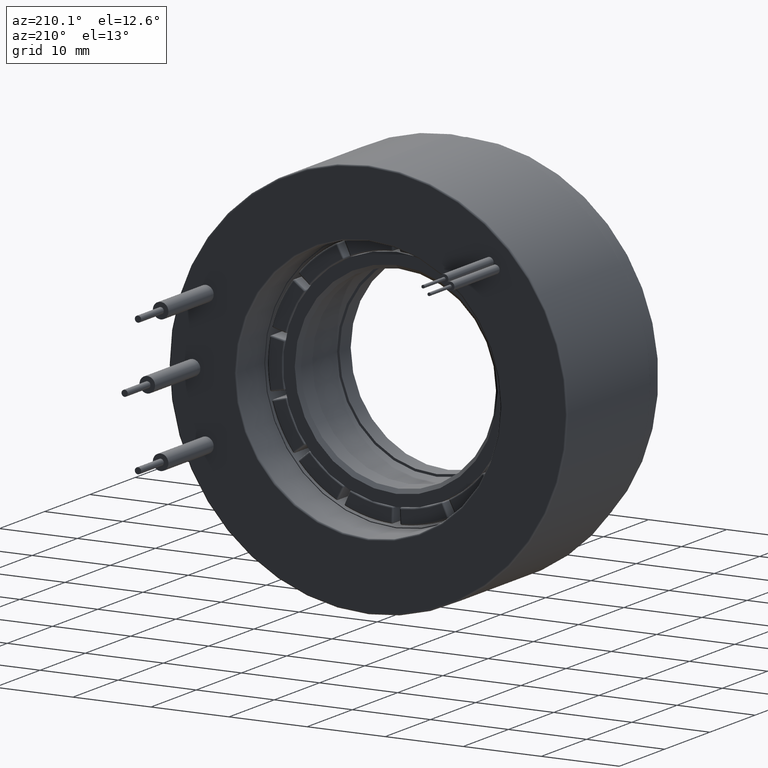
[diagram: clean part render]
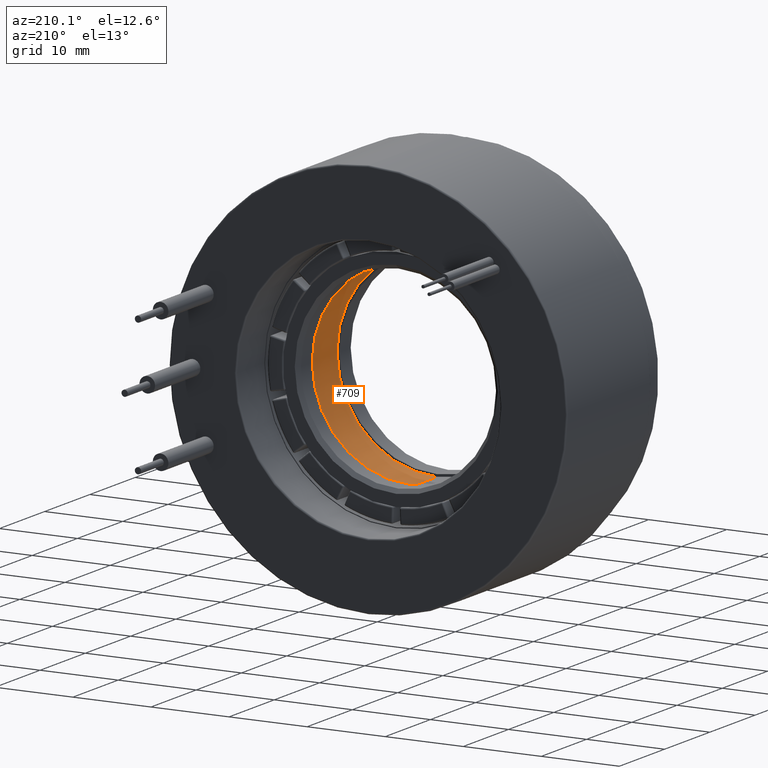
[diagram: same view with one face highlighted and labeled with its STEP entity id]
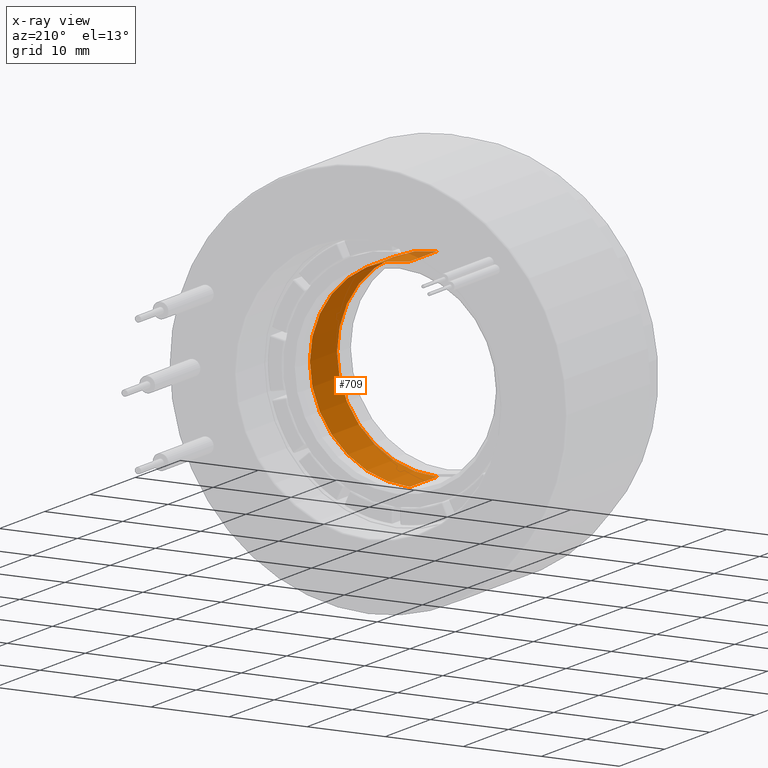
[diagram: x-ray of the same camera — body ghosted, the highlighted face saturated]
A machine part, auxiliary view. The second image highlights one B-rep face of the part: STEP entity #709.
The next image is the same camera in x-ray: the body ghosted, the highlighted face saturated — about 2% of this face is hidden behind the body in this view.
In plain terms, the highlighted cylindrical surface (partial cylindrical patch) has radius 12.8 mm, axis along (0, -1, 0).
Its self-contained STEP definition (entity closure, byte-faithful):
#48 = CARTESIAN_POINT ( 'NONE',  ( 0.0000000000000000000, 2.999999999999999600, 0.0000000000000000000 ) ) ;
#172 = VERTEX_POINT ( 'NONE', #3058 ) ;
#396 = VERTEX_POINT ( 'NONE', #3096 ) ;
#518 = EDGE_LOOP ( 'NONE', ( #1959, #3149, #3003, #777 ) ) ;
#553 = AXIS2_PLACEMENT_3D ( 'NONE', #996, #1854, #3117 ) ;
#575 = DIRECTION ( 'NONE',  ( 0.0000000000000000000, 0.0000000000000000000, -1.000000000000000000 ) ) ;
#709 = ADVANCED_FACE ( 'NONE', ( #1803 ), #915, .F. ) ;
#720 = CIRCLE ( 'NONE', #2997, 12.80000000000000200 ) ;
#741 = VERTEX_POINT ( 'NONE', #1917 ) ;
#777 = ORIENTED_EDGE ( 'NONE', *, *, #2300, .F. ) ;
#836 = DIRECTION ( 'NONE',  ( 0.0000000000000000000, 0.0000000000000000000, -1.000000000000000000 ) ) ;
#915 = CYLINDRICAL_SURFACE ( 'NONE', #553, 12.80000000000000200 ) ;
#996 = CARTESIAN_POINT ( 'NONE',  ( 0.0000000000000000000, 0.0000000000000000000, 0.0000000000000000000 ) ) ;
#1071 = DIRECTION ( 'NONE',  ( -0.0000000000000000000, -1.000000000000000000, -0.0000000000000000000 ) ) ;
#1459 = EDGE_CURVE ( 'NONE', #741, #3190, #1777, .T. ) ;
#1546 = AXIS2_PLACEMENT_3D ( 'NONE', #2593, #1071, #836 ) ;
#1777 = CIRCLE ( 'NONE', #1546, 12.80000000000000100 ) ;
#1803 = FACE_OUTER_BOUND ( 'NONE', #518, .T. ) ;
#1854 = DIRECTION ( 'NONE',  ( -0.0000000000000000000, -1.000000000000000000, -0.0000000000000000000 ) ) ;
#1917 = CARTESIAN_POINT ( 'NONE',  ( 1.567547902908612200E-015, 9.000000000000001800, 12.80000000000000100 ) ) ;
#1923 = EDGE_CURVE ( 'NONE', #396, #172, #720, .T. ) ;
#1959 = ORIENTED_EDGE ( 'NONE', *, *, #1459, .F. ) ;
#2072 = DIRECTION ( 'NONE',  ( -0.0000000000000000000, -1.000000000000000000, -0.0000000000000000000 ) ) ;
#2136 = VECTOR ( 'NONE', #3088, 1000.000000000000000 ) ;
#2245 = CARTESIAN_POINT ( 'NONE',  ( 0.0000000000000000000, 0.0000000000000000000, -12.80000000000000200 ) ) ;
#2300 = EDGE_CURVE ( 'NONE', #3190, #172, #2739, .T. ) ;
#2497 = CARTESIAN_POINT ( 'NONE',  ( 1.567547902908612400E-015, 0.0000000000000000000, 12.80000000000000200 ) ) ;
#2593 = CARTESIAN_POINT ( 'NONE',  ( 0.0000000000000000000, 9.000000000000001800, 0.0000000000000000000 ) ) ;
#2709 = LINE ( 'NONE', #2497, #3104 ) ;
#2739 = LINE ( 'NONE', #2245, #2136 ) ;
#2749 = CARTESIAN_POINT ( 'NONE',  ( 0.0000000000000000000, 9.000000000000001800, -12.80000000000000100 ) ) ;
#2997 = AXIS2_PLACEMENT_3D ( 'NONE', #48, #2072, #575 ) ;
#3003 = ORIENTED_EDGE ( 'NONE', *, *, #1923, .T. ) ;
#3058 = CARTESIAN_POINT ( 'NONE',  ( 0.0000000000000000000, 2.999999999999999600, -12.80000000000000200 ) ) ;
#3082 = DIRECTION ( 'NONE',  ( -0.0000000000000000000, -1.000000000000000000, -0.0000000000000000000 ) ) ;
#3088 = DIRECTION ( 'NONE',  ( -0.0000000000000000000, -1.000000000000000000, -0.0000000000000000000 ) ) ;
#3096 = CARTESIAN_POINT ( 'NONE',  ( 1.567547902908612400E-015, 2.999999999999999600, 12.80000000000000200 ) ) ;
#3104 = VECTOR ( 'NONE', #3082, 1000.000000000000000 ) ;
#3117 = DIRECTION ( 'NONE',  ( 0.0000000000000000000, 0.0000000000000000000, -1.000000000000000000 ) ) ;
#3149 = ORIENTED_EDGE ( 'NONE', *, *, #3254, .T. ) ;
#3190 = VERTEX_POINT ( 'NONE', #2749 ) ;
#3254 = EDGE_CURVE ( 'NONE', #741, #396, #2709, .T. ) ;